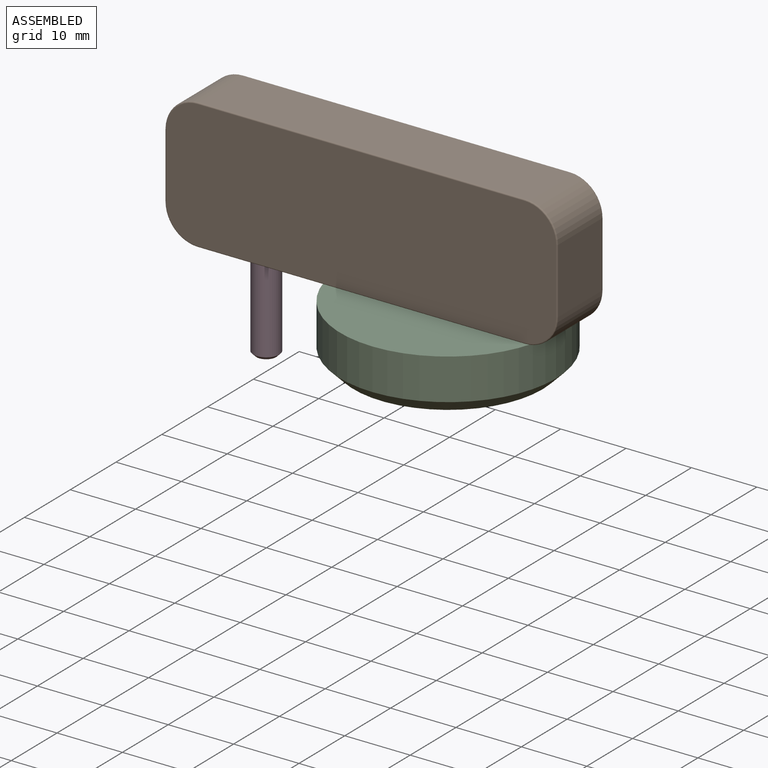
[diagram: assembled view]
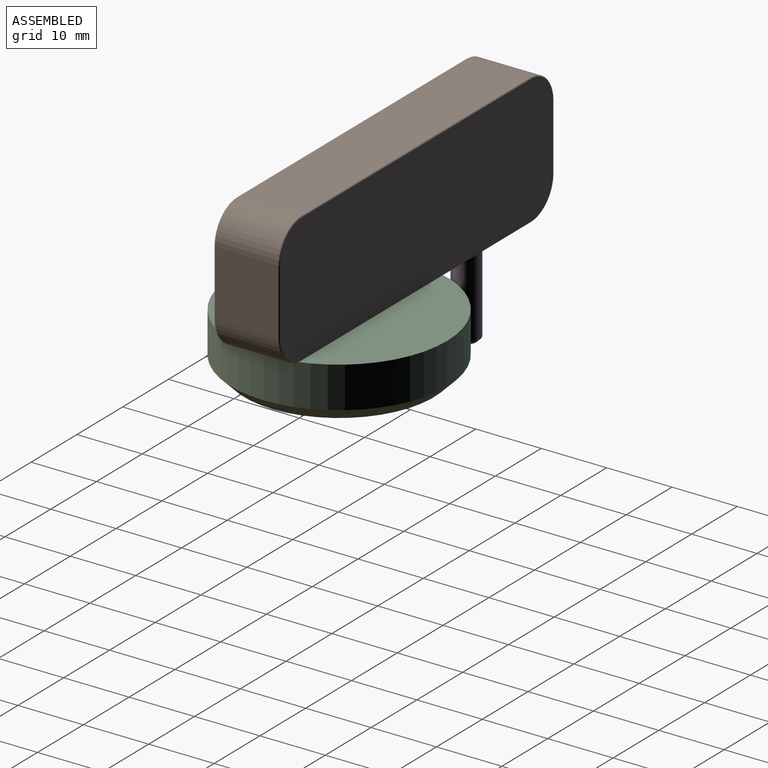
[diagram: assembled view, second angle]
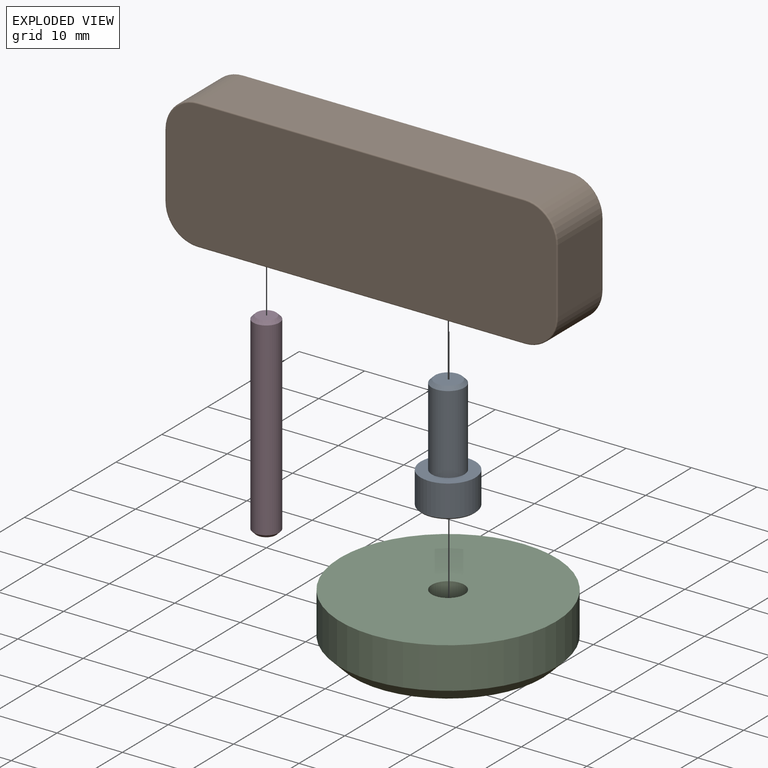
[diagram: exploded view]
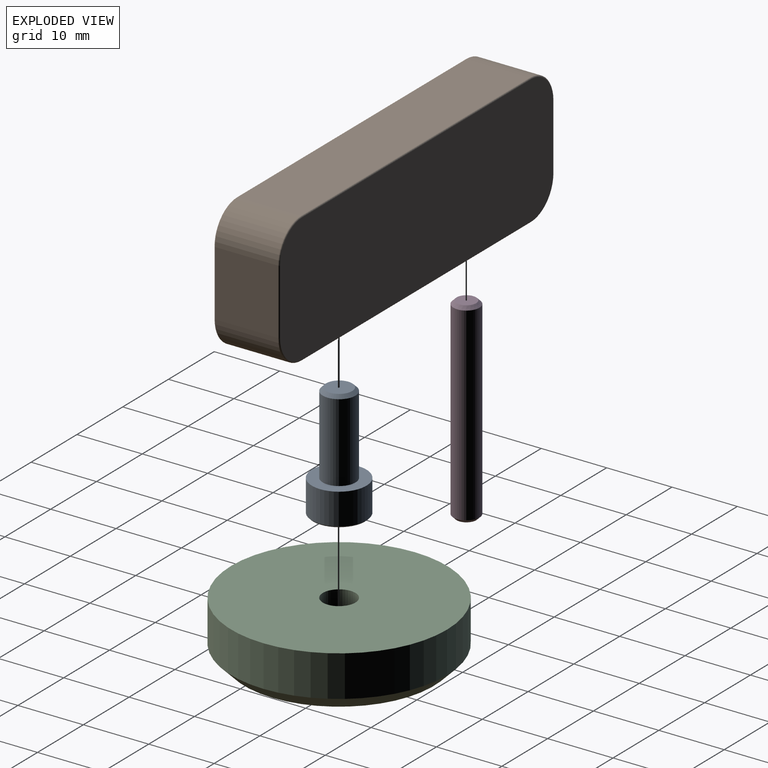
[diagram: exploded view, second angle]
ASSEMBLY  parts=4 mates=3
PART A: 20 faces, bbox 8.4x8.4x17.5 mm
  f0: plane 7.95x7.95mm, normal (0,0,-1), area 32.9mm2, adj f13,f14,f15,f16,f17,f18,f19
  f1: cylinder r=4.17mm len=8.35mm, axis (0,0,-1), area 125.9mm2, adj f2,f13
  f2: plane 8.35x8.35mm, normal (0,0,1), area 35.1mm2, adj f1,f3
  f3: cylinder r=2.5mm len=12mm, axis (0,0,-1), area 188.5mm2, adj f2,f12
  f4: plane 4x4mm, normal (0,0,1), area 12.6mm2, adj f12
  f5: plane 2.8x2.29mm, normal (-0.99,0.13,0), area 6.5mm2, adj f6,f10,f11,f19
  f6: plane 2.8x1.84mm, normal (-0.61,-0.79,0), area 6.5mm2, adj f5,f7,f11,f18
  f7: plane 2.8x2.13mm, normal (0.38,-0.92,0), area 6.5mm2, adj f6,f8,f11,f16
  f8: plane 2.8x2.29mm, normal (0.99,-0.13,0), area 6.5mm2, adj f7,f9,f11,f14
  f9: plane 2.8x1.84mm, normal (0.61,0.79,0), area 6.5mm2, adj f8,f10,f11,f15
  f10: plane 2.8x2.13mm, normal (-0.38,0.92,0), area 6.5mm2, adj f5,f9,f11,f17
  f11: plane 4.58x4.26mm, normal (0,0,-1), area 13.9mm2, adj f5,f6,f7,f8,f9,f10
  f12: cone r=2mm half-angle=45deg, axis (0,0,-1), area 10mm2, adj f3,f4
  f13: cone r=4.17mm half-angle=45deg, axis (0,0,1), area 7.2mm2, adj f0,f1
  f14: plane 2.52x0.51mm, normal (0.7,-0.09,-0.71), area 0.7mm2, adj f0,f8,f15,f16
  f15: plane 2.05x1.63mm, normal (0.43,0.56,-0.71), area 0.7mm2, adj f0,f9,f14,f17
  f16: plane 2.34x1.12mm, normal (0.27,-0.65,-0.71), area 0.7mm2, adj f0,f7,f14,f18
  f17: plane 2.34x1.12mm, normal (-0.27,0.65,-0.71), area 0.7mm2, adj f0,f10,f15,f19
  f18: plane 2.05x1.63mm, normal (-0.43,-0.56,-0.71), area 0.7mm2, adj f0,f6,f16,f19
  f19: plane 2.52x0.51mm, normal (-0.7,0.09,-0.71), area 0.7mm2, adj f0,f5,f17,f18
PART B: 30 faces, bbox 60.8x20.8x10 mm
  f0: plane 10x9.6mm, normal (1,0,0), area 96mm2, adj f1,f7,f18,f26
  f1: cylinder r=5mm len=9.6mm, axis (0,0,-1), area 75.4mm2, adj f0,f2,f16,f24
  f2: plane 50x9.6mm, normal (0,1,0), area 480mm2, adj f1,f3,f14,f22
  f3: cylinder r=5mm len=9.6mm, axis (0,0,-1), area 75.4mm2, adj f2,f4,f15,f23
  f4: plane 10x9.6mm, normal (-1,0,0), area 96mm2, adj f3,f5,f17,f25
  f5: cylinder r=5mm len=9.6mm, axis (0,0,-1), area 75.4mm2, adj f4,f6,f19,f27
  f6: plane 50x9.6mm, normal (0,-1,0), area 447.8mm2, adj f5,f7,f10,f12,f21,f29
  f7: cylinder r=5mm len=9.6mm, axis (0,0,-1), area 75.4mm2, adj f0,f6,f20,f28
  f8: plane 59.6x19.6mm, normal (0,0,1), area 1148.4mm2, adj f22,f23,f24,f25,f26,f27,f28,f29
  f9: plane 59.6x19.6mm, normal (0,0,-1), area 1148.4mm2, adj f14,f15,f16,f17,f18,f19,f20,f21
  f10: cylinder r=2.5mm len=14.7mm, axis (0,-1,0), area 230.9mm2, adj f6,f11
  f11: plane 5x5mm, normal (0,-1,0), area 19.6mm2, adj f10
  f12: cylinder r=2mm len=14.7mm, axis (0,-1,0), area 184.7mm2, adj f6,f13
  f13: plane 4x4mm, normal (0,-1,0), area 12.6mm2, adj f12
  f14: cylinder r=0.2mm len=50mm, axis (-1,0,0), area 15.7mm2, adj f2,f9,f15,f16
  f15: torus R=4.8mm, axis (0,0,1), area 2.4mm2, adj f3,f9,f14,f17
  f16: torus R=4.8mm, axis (0,0,1), area 2.4mm2, adj f1,f9,f14,f18
  f17: cylinder r=0.2mm len=10mm, axis (0,-1,0), area 3.1mm2, adj f4,f9,f15,f19
  f18: cylinder r=0.2mm len=10mm, axis (0,1,0), area 3.1mm2, adj f0,f9,f16,f20
  f19: torus R=4.8mm, axis (0,0,1), area 2.4mm2, adj f5,f9,f17,f21
  f20: torus R=4.8mm, axis (0,0,1), area 2.4mm2, adj f7,f9,f18,f21
  f21: cylinder r=0.2mm len=50mm, axis (1,0,0), area 15.7mm2, adj f6,f9,f19,f20
  f22: cylinder r=0.2mm len=50mm, axis (1,0,0), area 15.7mm2, adj f2,f8,f23,f24
  f23: torus R=4.8mm, axis (0,0,1), area 2.4mm2, adj f3,f8,f22,f25
  f24: torus R=4.8mm, axis (0,0,1), area 2.4mm2, adj f1,f8,f22,f26
  f25: cylinder r=0.2mm len=10mm, axis (0,1,0), area 3.1mm2, adj f4,f8,f23,f27
  f26: cylinder r=0.2mm len=10mm, axis (0,-1,0), area 3.1mm2, adj f0,f8,f24,f28
  f27: torus R=4.8mm, axis (0,0,1), area 2.4mm2, adj f5,f8,f25,f29
  f28: torus R=4.8mm, axis (0,0,1), area 2.4mm2, adj f7,f8,f26,f29
  f29: cylinder r=0.2mm len=50mm, axis (-1,0,0), area 15.7mm2, adj f6,f8,f27,f28
PART C: 7 faces, bbox 33x33x8.3 mm
  f0: cylinder r=16.5mm len=33mm, axis (0,0,-1), area 653.1mm2, adj f1,f3
  f1: plane 33x33mm, normal (0,0,1), area 835.7mm2, adj f0,f4
  f2: plane 29x29mm, normal (0,0,-1), area 596.9mm2, adj f3,f5
  f3: cone r=16.5mm half-angle=45deg, axis (0,0,1), area 275.5mm2, adj f0,f2
  f4: cylinder r=2.5mm len=5mm, axis (0,0,-1), area 51.8mm2, adj f1,f6
  f5: cylinder r=4.5mm len=9mm, axis (0,0,-1), area 141.4mm2, adj f2,f6
  f6: plane 9x9mm, normal (0,0,-1), area 44mm2, adj f4,f5
PART D: 5 faces, bbox 4x4x30 mm
  f0: cylinder r=2mm len=29mm, axis (0,0,-1), area 364.4mm2, adj f3,f4
  f1: plane 3x3mm, normal (0,0,1), area 7.1mm2, adj f4
  f2: plane 3x3mm, normal (0,0,-1), area 7.1mm2, adj f3
  f3: cone r=2mm half-angle=45deg, axis (0,0,1), area 7.8mm2, adj f0,f2
  f4: cone r=1.5mm half-angle=45deg, axis (0,0,-1), area 7.8mm2, adj f0,f1
PLACE A t=(47.39,36.29,9.25)mm
PLACE B rot(axis=(1,0,0),90deg) t=(37.59,41.29,27.55)mm
PLACE C t=(47.39,36.29,9.25)mm
PLACE D rot(axis=(1,0,0),180deg) t=(19.59,36.29,32.75)mm
MATE fastened B.f10 <-> C.f0  axis (0,0,-1) through (47.39,36.29,17.55)mm
MATE fastened D.f0 <-> B.f12  axis (0,0,1) through (19.59,36.29,32.25)mm
MATE fastened C.f4 <-> A.f3  axis (0,0,-1) through (47.39,36.29,14.25)mm
